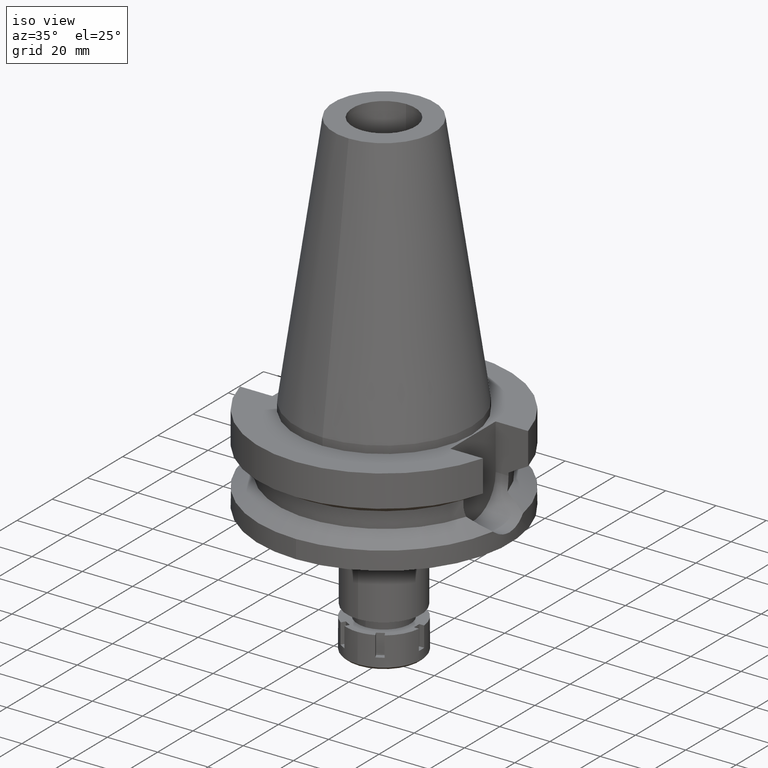
[diagram: clean part render]
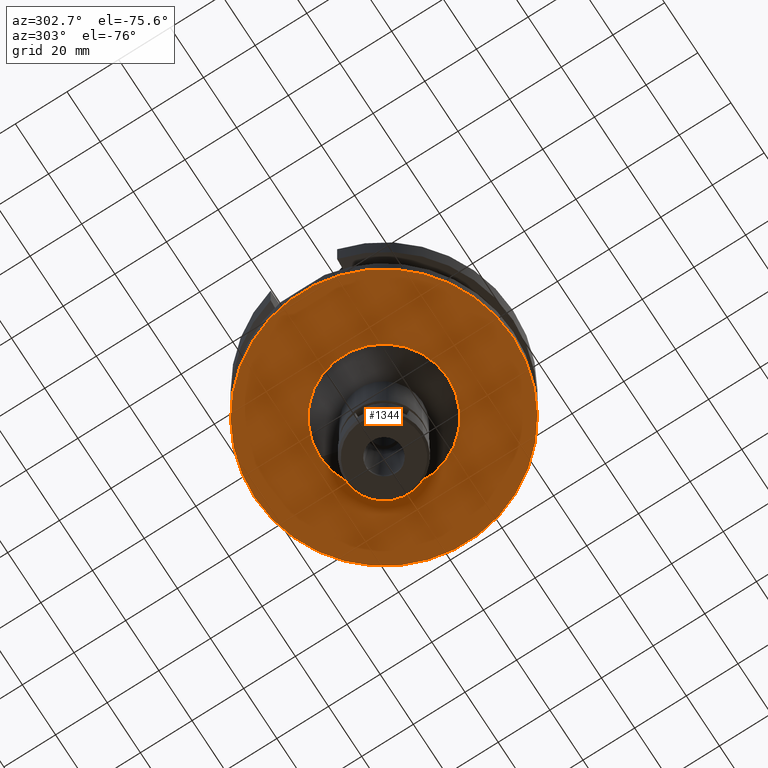
[diagram: tour spotlight — one face highlighted and labeled with its STEP entity id]
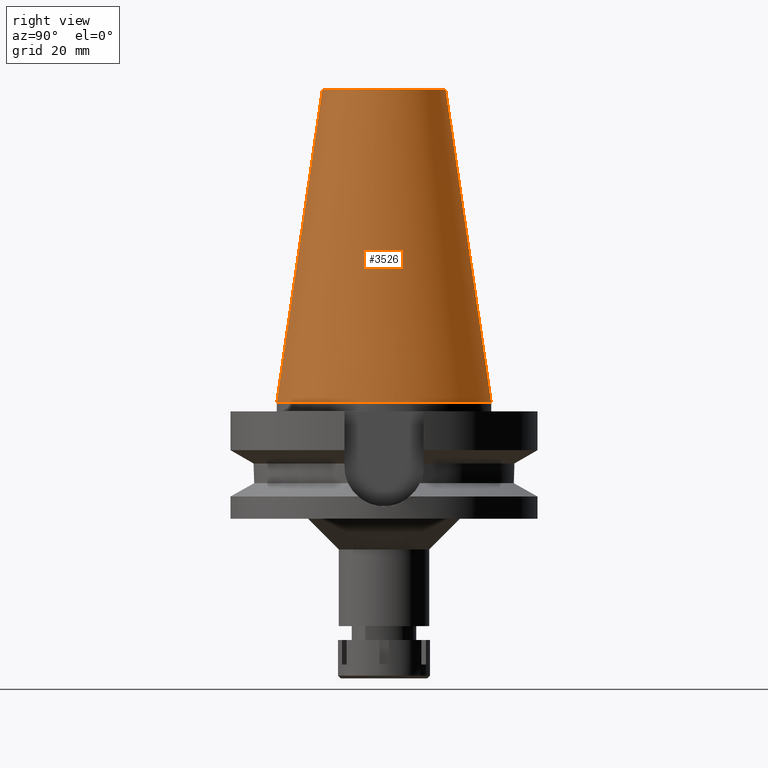
[diagram: tour spotlight — one face highlighted and labeled with its STEP entity id]
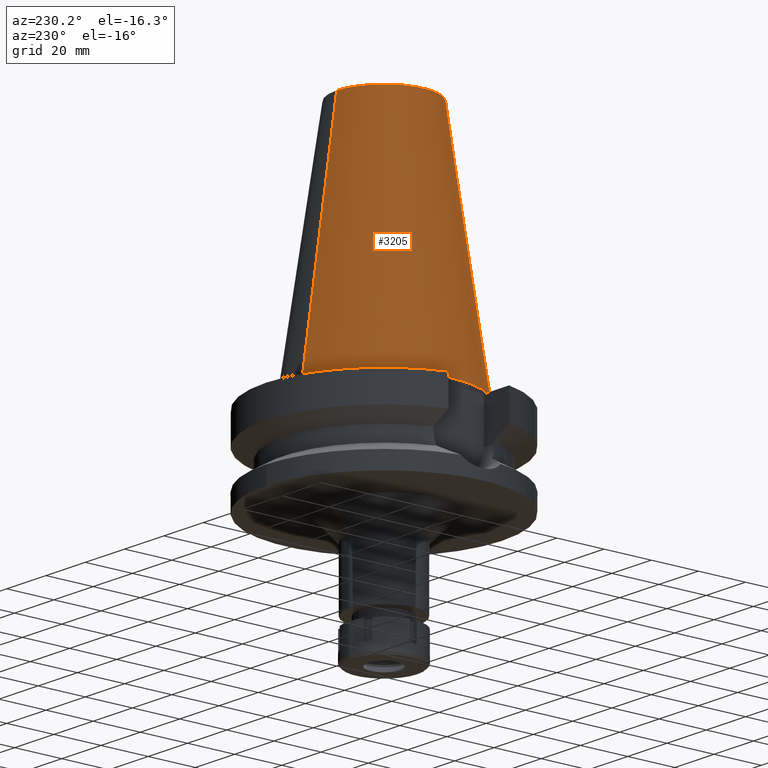
[diagram: tour spotlight — one face highlighted and labeled with its STEP entity id]
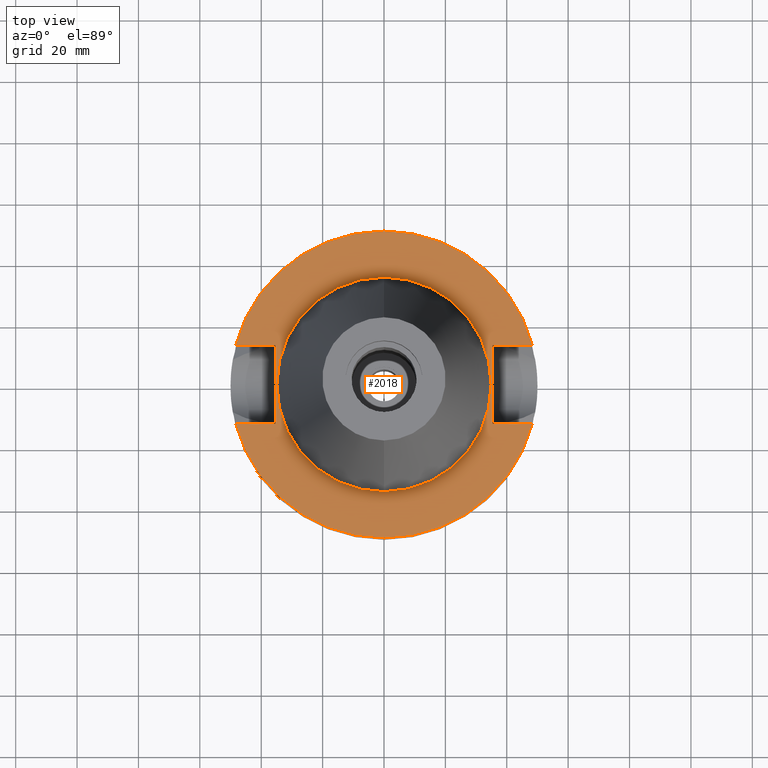
[diagram: tour spotlight — one face highlighted and labeled with its STEP entity id]
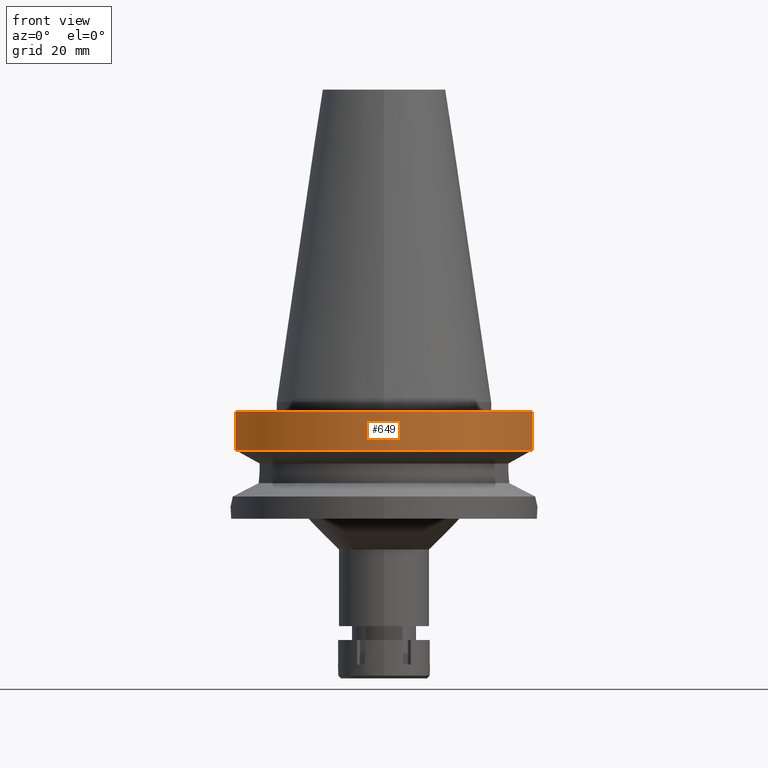
[diagram: tour spotlight — one face highlighted and labeled with its STEP entity id]
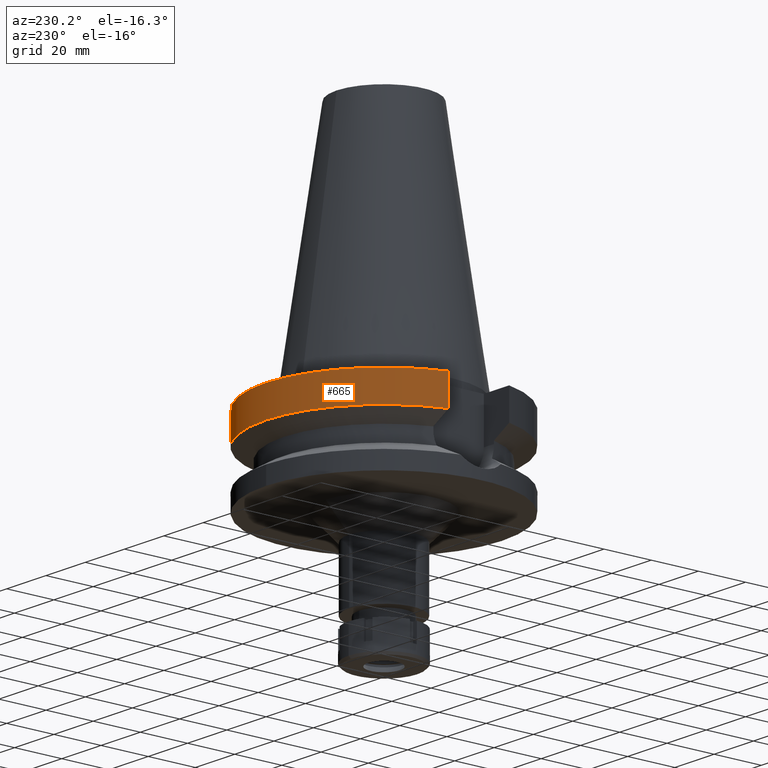
[diagram: tour spotlight — one face highlighted and labeled with its STEP entity id]
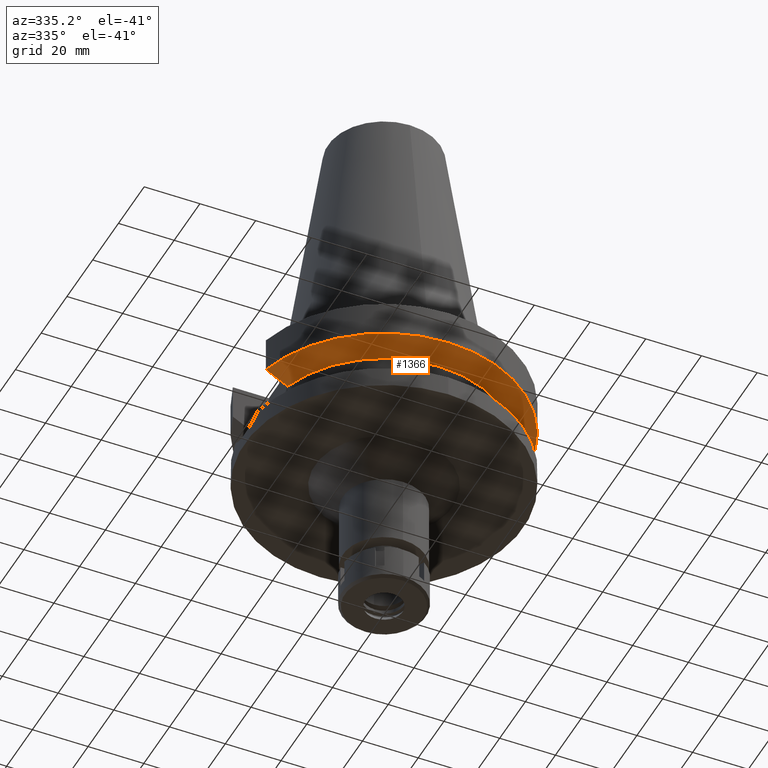
[diagram: tour spotlight — one face highlighted and labeled with its STEP entity id]
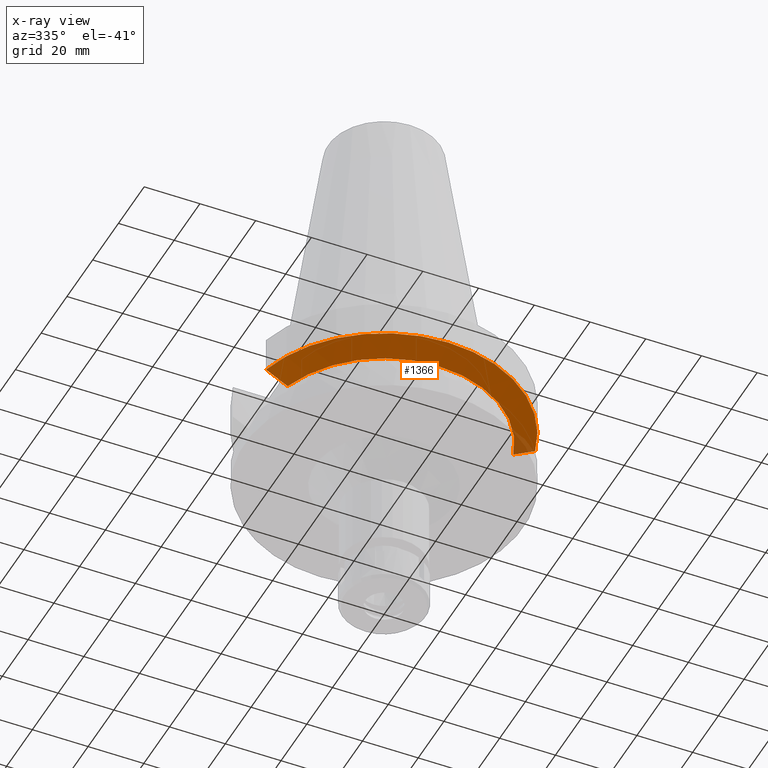
[diagram: x-ray of the same camera — body ghosted, this tour face saturated]
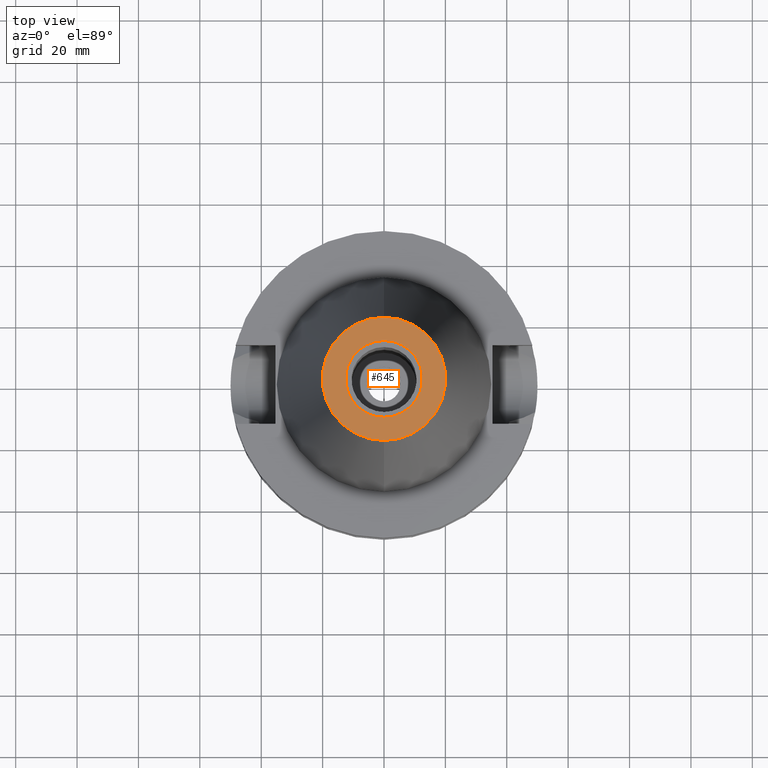
[diagram: tour spotlight — one face highlighted and labeled with its STEP entity id]
A machine part: a face-by-face anatomy tour. The part has 93 B-rep faces; the first image is the clean iso view, then the 8 largest visible faces are spotlighted one at a time (largest first), each with its STEP entity span.

Face 1 — auxiliary view, entity #1344. In plain terms, the highlighted planar face has unit normal (0, 0, -1).
Definition (entity closure, byte-faithful):
#5 = EDGE_LOOP ( 'NONE', ( #776, #1572 ) ) ;
#161 = DIRECTION ( 'NONE',  ( 0.0000000000000000000, 0.0000000000000000000, -1.000000000000000000 ) ) ;
#171 = AXIS2_PLACEMENT_3D ( 'NONE', #1367, #473, #2141 ) ;
#438 = CARTESIAN_POINT ( 'NONE',  ( 0.0000000000000000000, 0.0000000000000000000, -38.00000000000000000 ) ) ;
#473 = DIRECTION ( 'NONE',  ( 0.0000000000000000000, 0.0000000000000000000, 1.000000000000000000 ) ) ;
#568 = AXIS2_PLACEMENT_3D ( 'NONE', #438, #161, #2421 ) ;
#629 = CIRCLE ( 'NONE', #568, 24.75000000000000000 ) ;
#697 = VERTEX_POINT ( 'NONE', #1315 ) ;
#729 = DIRECTION ( 'NONE',  ( 0.0000000000000000000, 0.0000000000000000000, 1.000000000000000000 ) ) ;
#758 = VERTEX_POINT ( 'NONE', #1909 ) ;
#776 = ORIENTED_EDGE ( 'NONE', *, *, #3333, .F. ) ;
#877 = CIRCLE ( 'NONE', #171, 50.00000000000000000 ) ;
#1110 = DIRECTION ( 'NONE',  ( 0.0000000000000000000, 0.0000000000000000000, -1.000000000000000000 ) ) ;
#1150 = AXIS2_PLACEMENT_3D ( 'NONE', #3404, #1110, #2254 ) ;
#1282 = CIRCLE ( 'NONE', #3371, 50.00000000000000000 ) ;
#1315 = CARTESIAN_POINT ( 'NONE',  ( 0.0000000000000000000, 24.75000000000000000, -38.00000000000000000 ) ) ;
#1344 = ADVANCED_FACE ( 'NONE', ( #1964, #2237 ), #2532, .T. ) ;
#1367 = CARTESIAN_POINT ( 'NONE',  ( 0.0000000000000000000, 2.584494604920999480E-14, -38.00000000000000000 ) ) ;
#1572 = ORIENTED_EDGE ( 'NONE', *, *, #3402, .F. ) ;
#1597 = VERTEX_POINT ( 'NONE', #2040 ) ;
#1598 = CARTESIAN_POINT ( 'NONE',  ( 0.0000000000000000000, 0.0000000000000000000, -38.00000000000000000 ) ) ;
#1909 = CARTESIAN_POINT ( 'NONE',  ( 0.0000000000000000000, -50.00000000000000000, -38.00000000000000000 ) ) ;
#1964 = FACE_OUTER_BOUND ( 'NONE', #5, .T. ) ;
#2040 = CARTESIAN_POINT ( 'NONE',  ( 0.0000000000000000000, -24.75000000000000000, -38.00000000000000000 ) ) ;
#2141 = DIRECTION ( 'NONE',  ( 0.0000000000000000000, -1.000000000000000000, 0.0000000000000000000 ) ) ;
#2172 = DIRECTION ( 'NONE',  ( 0.0000000000000000000, 1.000000000000000000, 0.0000000000000000000 ) ) ;
#2221 = AXIS2_PLACEMENT_3D ( 'NONE', #1598, #2741, #2172 ) ;
#2224 = CIRCLE ( 'NONE', #2221, 24.75000000000000000 ) ;
#2237 = FACE_BOUND ( 'NONE', #3459, .T. ) ;
#2254 = DIRECTION ( 'NONE',  ( 0.0000000000000000000, -1.000000000000000000, 0.0000000000000000000 ) ) ;
#2421 = DIRECTION ( 'NONE',  ( 0.0000000000000000000, -1.000000000000000000, 0.0000000000000000000 ) ) ;
#2521 = ORIENTED_EDGE ( 'NONE', *, *, #3183, .F. ) ;
#2532 = PLANE ( 'NONE',  #1150 ) ;
#2726 = CARTESIAN_POINT ( 'NONE',  ( 0.0000000000000000000, 2.584494604920999480E-14, -38.00000000000000000 ) ) ;
#2741 = DIRECTION ( 'NONE',  ( 0.0000000000000000000, 0.0000000000000000000, -1.000000000000000000 ) ) ;
#2905 = VERTEX_POINT ( 'NONE', #2955 ) ;
#2955 = CARTESIAN_POINT ( 'NONE',  ( 0.0000000000000000000, 50.00000000000000000, -38.00000000000000000 ) ) ;
#3002 = DIRECTION ( 'NONE',  ( 0.0000000000000000000, 1.000000000000000000, 0.0000000000000000000 ) ) ;
#3183 = EDGE_CURVE ( 'NONE', #1597, #697, #629, .T. ) ;
#3333 = EDGE_CURVE ( 'NONE', #2905, #758, #1282, .T. ) ;
#3371 = AXIS2_PLACEMENT_3D ( 'NONE', #2726, #729, #3002 ) ;
#3402 = EDGE_CURVE ( 'NONE', #758, #2905, #877, .T. ) ;
#3404 = CARTESIAN_POINT ( 'NONE',  ( 0.0000000000000000000, 0.0000000000000000000, -38.00000000000000000 ) ) ;
#3408 = EDGE_CURVE ( 'NONE', #697, #1597, #2224, .T. ) ;
#3459 = EDGE_LOOP ( 'NONE', ( #3611, #2521 ) ) ;
#3611 = ORIENTED_EDGE ( 'NONE', *, *, #3408, .F. ) ;

Face 2 — right view, entity #3526. In plain terms, the highlighted conical surface has half-angle 8.297 deg.
Definition (entity closure, byte-faithful):
#23 = AXIS2_PLACEMENT_3D ( 'NONE', #1745, #2044, #862 ) ;
#39 = AXIS2_PLACEMENT_3D ( 'NONE', #148, #720, #2110 ) ;
#84 = CARTESIAN_POINT ( 'NONE',  ( 0.0000000000000000000, -34.92499999999999716, 4.547473508865000658E-13 ) ) ;
#108 = CONICAL_SURFACE ( 'NONE', #2599, 27.50221485948000222, 0.1448099680379422438 ) ;
#148 = CARTESIAN_POINT ( 'NONE',  ( 0.0000000000000000000, 1.847992019912999597E-14, 3.979039320256999774E-13 ) ) ;
#197 = LINE ( 'NONE', #1627, #2775 ) ;
#455 = DIRECTION ( 'NONE',  ( 0.0000000000000000000, 0.1443043893538948075, -0.9895333461855641000 ) ) ;
#534 = DIRECTION ( 'NONE',  ( 0.0000000000000000000, -1.000000000000000000, 0.0000000000000000000 ) ) ;
#545 = EDGE_CURVE ( 'NONE', #1318, #1051, #2143, .T. ) ;
#720 = DIRECTION ( 'NONE',  ( 0.0000000000000000000, 0.0000000000000000000, -1.000000000000000000 ) ) ;
#731 = CARTESIAN_POINT ( 'NONE',  ( 0.0000000000000000000, 34.92499999999999716, 4.547473508865000658E-13 ) ) ;
#862 = DIRECTION ( 'NONE',  ( 0.0000000000000000000, 1.000000000000000000, 0.0000000000000000000 ) ) ;
#957 = ORIENTED_EDGE ( 'NONE', *, *, #3348, .F. ) ;
#980 = EDGE_CURVE ( 'NONE', #1518, #1318, #1382, .T. ) ;
#1051 = VERTEX_POINT ( 'NONE', #84 ) ;
#1185 = ORIENTED_EDGE ( 'NONE', *, *, #980, .T. ) ;
#1196 = ORIENTED_EDGE ( 'NONE', *, *, #545, .T. ) ;
#1306 = VERTEX_POINT ( 'NONE', #731 ) ;
#1318 = VERTEX_POINT ( 'NONE', #2585 ) ;
#1382 = CIRCLE ( 'NONE', #23, 20.07942971896000017 ) ;
#1404 = CARTESIAN_POINT ( 'NONE',  ( 0.0000000000000000000, 1.847992019912999597E-14, 50.89999999999999858 ) ) ;
#1518 = VERTEX_POINT ( 'NONE', #3468 ) ;
#1627 = CARTESIAN_POINT ( 'NONE',  ( 0.0000000000000000000, 20.07942971896000017, 101.7999999999999972 ) ) ;
#1641 = EDGE_LOOP ( 'NONE', ( #1185, #1196, #3044, #957 ) ) ;
#1665 = DIRECTION ( 'NONE',  ( 0.0000000000000000000, 0.0000000000000000000, -1.000000000000000000 ) ) ;
#1745 = CARTESIAN_POINT ( 'NONE',  ( 0.0000000000000000000, 1.847992019912999597E-14, 101.7999999999999972 ) ) ;
#2044 = DIRECTION ( 'NONE',  ( 0.0000000000000000000, 0.0000000000000000000, -1.000000000000000000 ) ) ;
#2072 = DIRECTION ( 'NONE',  ( 0.0000000000000000000, -0.1443043893538948075, -0.9895333461855641000 ) ) ;
#2110 = DIRECTION ( 'NONE',  ( 0.0000000000000000000, 1.000000000000000000, 0.0000000000000000000 ) ) ;
#2131 = CARTESIAN_POINT ( 'NONE',  ( 0.0000000000000000000, -20.07942971896000017, 101.7999999999999972 ) ) ;
#2143 = LINE ( 'NONE', #2131, #2756 ) ;
#2585 = CARTESIAN_POINT ( 'NONE',  ( 0.0000000000000000000, -20.07942971896000017, 101.7999999999999972 ) ) ;
#2599 = AXIS2_PLACEMENT_3D ( 'NONE', #1404, #1665, #534 ) ;
#2756 = VECTOR ( 'NONE', #2072, 1000.000000000000114 ) ;
#2775 = VECTOR ( 'NONE', #455, 1000.000000000000114 ) ;
#2966 = EDGE_CURVE ( 'NONE', #1306, #1051, #3427, .T. ) ;
#3044 = ORIENTED_EDGE ( 'NONE', *, *, #2966, .F. ) ;
#3348 = EDGE_CURVE ( 'NONE', #1518, #1306, #197, .T. ) ;
#3403 = FACE_OUTER_BOUND ( 'NONE', #1641, .T. ) ;
#3427 = CIRCLE ( 'NONE', #39, 34.92499999999999716 ) ;
#3468 = CARTESIAN_POINT ( 'NONE',  ( 0.0000000000000000000, 20.07942971896000017, 101.7999999999999972 ) ) ;
#3526 = ADVANCED_FACE ( 'NONE', ( #3403 ), #108, .T. ) ;

Face 3 — auxiliary view, entity #3205. In plain terms, the highlighted conical surface has half-angle 8.297 deg.
Definition (entity closure, byte-faithful):
#84 = CARTESIAN_POINT ( 'NONE',  ( 0.0000000000000000000, -34.92499999999999716, 4.547473508865000658E-13 ) ) ;
#197 = LINE ( 'NONE', #1627, #2775 ) ;
#230 = AXIS2_PLACEMENT_3D ( 'NONE', #589, #3470, #272 ) ;
#272 = DIRECTION ( 'NONE',  ( 0.0000000000000000000, -1.000000000000000000, 0.0000000000000000000 ) ) ;
#273 = CIRCLE ( 'NONE', #1509, 20.07942971896000017 ) ;
#406 = AXIS2_PLACEMENT_3D ( 'NONE', #2396, #1562, #2967 ) ;
#455 = DIRECTION ( 'NONE',  ( 0.0000000000000000000, 0.1443043893538948075, -0.9895333461855641000 ) ) ;
#545 = EDGE_CURVE ( 'NONE', #1318, #1051, #2143, .T. ) ;
#589 = CARTESIAN_POINT ( 'NONE',  ( 0.0000000000000000000, 1.847992019912999597E-14, 3.979039320256999774E-13 ) ) ;
#695 = DIRECTION ( 'NONE',  ( 0.0000000000000000000, 0.0000000000000000000, -1.000000000000000000 ) ) ;
#731 = CARTESIAN_POINT ( 'NONE',  ( 0.0000000000000000000, 34.92499999999999716, 4.547473508865000658E-13 ) ) ;
#1051 = VERTEX_POINT ( 'NONE', #84 ) ;
#1133 = EDGE_CURVE ( 'NONE', #1318, #1518, #273, .T. ) ;
#1226 = CONICAL_SURFACE ( 'NONE', #406, 27.50221485948000222, 0.1448099680379422438 ) ;
#1236 = ORIENTED_EDGE ( 'NONE', *, *, #545, .F. ) ;
#1306 = VERTEX_POINT ( 'NONE', #731 ) ;
#1318 = VERTEX_POINT ( 'NONE', #2585 ) ;
#1324 = EDGE_LOOP ( 'NONE', ( #2961, #1236, #1533, #3081 ) ) ;
#1485 = FACE_OUTER_BOUND ( 'NONE', #1324, .T. ) ;
#1509 = AXIS2_PLACEMENT_3D ( 'NONE', #3249, #695, #2969 ) ;
#1518 = VERTEX_POINT ( 'NONE', #3468 ) ;
#1533 = ORIENTED_EDGE ( 'NONE', *, *, #1133, .T. ) ;
#1562 = DIRECTION ( 'NONE',  ( 0.0000000000000000000, 0.0000000000000000000, -1.000000000000000000 ) ) ;
#1627 = CARTESIAN_POINT ( 'NONE',  ( 0.0000000000000000000, 20.07942971896000017, 101.7999999999999972 ) ) ;
#2072 = DIRECTION ( 'NONE',  ( 0.0000000000000000000, -0.1443043893538948075, -0.9895333461855641000 ) ) ;
#2131 = CARTESIAN_POINT ( 'NONE',  ( 0.0000000000000000000, -20.07942971896000017, 101.7999999999999972 ) ) ;
#2143 = LINE ( 'NONE', #2131, #2756 ) ;
#2396 = CARTESIAN_POINT ( 'NONE',  ( 0.0000000000000000000, 1.847992019912999597E-14, 50.89999999999999858 ) ) ;
#2585 = CARTESIAN_POINT ( 'NONE',  ( 0.0000000000000000000, -20.07942971896000017, 101.7999999999999972 ) ) ;
#2756 = VECTOR ( 'NONE', #2072, 1000.000000000000114 ) ;
#2775 = VECTOR ( 'NONE', #455, 1000.000000000000114 ) ;
#2957 = CIRCLE ( 'NONE', #230, 34.92499999999999716 ) ;
#2961 = ORIENTED_EDGE ( 'NONE', *, *, #3164, .F. ) ;
#2967 = DIRECTION ( 'NONE',  ( 0.0000000000000000000, -1.000000000000000000, 0.0000000000000000000 ) ) ;
#2969 = DIRECTION ( 'NONE',  ( 0.0000000000000000000, -1.000000000000000000, 0.0000000000000000000 ) ) ;
#3081 = ORIENTED_EDGE ( 'NONE', *, *, #3348, .T. ) ;
#3164 = EDGE_CURVE ( 'NONE', #1051, #1306, #2957, .T. ) ;
#3205 = ADVANCED_FACE ( 'NONE', ( #1485 ), #1226, .T. ) ;
#3249 = CARTESIAN_POINT ( 'NONE',  ( 0.0000000000000000000, 1.847992019912999597E-14, 101.7999999999999972 ) ) ;
#3348 = EDGE_CURVE ( 'NONE', #1518, #1306, #197, .T. ) ;
#3468 = CARTESIAN_POINT ( 'NONE',  ( 0.0000000000000000000, 20.07942971896000017, 101.7999999999999972 ) ) ;
#3470 = DIRECTION ( 'NONE',  ( 0.0000000000000000000, 0.0000000000000000000, -1.000000000000000000 ) ) ;

Face 4 — top view, entity #2018. In plain terms, the highlighted planar face has unit normal (0, 0, -1).
Definition (entity closure, byte-faithful):
#102 = EDGE_CURVE ( 'NONE', #2245, #3397, #2788, .T. ) ;
#103 = LINE ( 'NONE', #422, #2417 ) ;
#110 = EDGE_CURVE ( 'NONE', #3397, #3560, #2968, .T. ) ;
#135 = ORIENTED_EDGE ( 'NONE', *, *, #110, .F. ) ;
#226 = CIRCLE ( 'NONE', #3072, 34.92499999999999716 ) ;
#249 = CARTESIAN_POINT ( 'NONE',  ( -35.39999999999999858, -12.84999999999999964, -3.000000000000000000 ) ) ;
#254 = DIRECTION ( 'NONE',  ( 0.0000000000000000000, 0.0000000000000000000, 1.000000000000000000 ) ) ;
#366 = LINE ( 'NONE', #3529, #743 ) ;
#422 = CARTESIAN_POINT ( 'NONE',  ( 35.39999999999999858, -12.84999999999999964, -3.000000000000000000 ) ) ;
#448 = ORIENTED_EDGE ( 'NONE', *, *, #2944, .F. ) ;
#472 = CARTESIAN_POINT ( 'NONE',  ( 35.39999999999999858, 12.84999999999999964, -3.000000000000000000 ) ) ;
#494 = CARTESIAN_POINT ( 'NONE',  ( 35.39999999999999858, -12.84999999999999964, -3.000000000000000000 ) ) ;
#553 = CARTESIAN_POINT ( 'NONE',  ( 0.0000000000000000000, 2.584494604920999480E-14, -3.000000000000000000 ) ) ;
#556 = CARTESIAN_POINT ( 'NONE',  ( -35.39999999999999858, -12.84999999999999964, -3.000000000000000000 ) ) ;
#577 = ORIENTED_EDGE ( 'NONE', *, *, #1508, .F. ) ;
#655 = CARTESIAN_POINT ( 'NONE',  ( -48.32057015392000210, -12.84999999999999964, -3.000000000000000000 ) ) ;
#690 = DIRECTION ( 'NONE',  ( -1.000000000000000000, 0.0000000000000000000, 0.0000000000000000000 ) ) ;
#702 = CARTESIAN_POINT ( 'NONE',  ( 0.0000000000000000000, 1.187907395172999884E-14, -3.000000000000000000 ) ) ;
#710 = CARTESIAN_POINT ( 'NONE',  ( 0.0000000000000000000, 2.584494604920999480E-14, -3.000000000000000000 ) ) ;
#743 = VECTOR ( 'NONE', #970, 1000.000000000000000 ) ;
#766 = CARTESIAN_POINT ( 'NONE',  ( 35.39999999999999858, 12.84999999999999964, -3.000000000000000000 ) ) ;
#961 = FACE_BOUND ( 'NONE', #2802, .T. ) ;
#968 = DIRECTION ( 'NONE',  ( 0.0000000000000000000, 0.0000000000000000000, -1.000000000000000000 ) ) ;
#970 = DIRECTION ( 'NONE',  ( 0.0000000000000000000, -1.000000000000000000, 0.0000000000000000000 ) ) ;
#975 = PLANE ( 'NONE',  #2165 ) ;
#1040 = DIRECTION ( 'NONE',  ( 1.000000000000000000, 0.0000000000000000000, 0.0000000000000000000 ) ) ;
#1120 = EDGE_CURVE ( 'NONE', #1741, #3683, #366, .T. ) ;
#1127 = DIRECTION ( 'NONE',  ( 0.0000000000000000000, 1.000000000000000000, 0.0000000000000000000 ) ) ;
#1171 = DIRECTION ( 'NONE',  ( -1.000000000000000000, 0.0000000000000000000, 0.0000000000000000000 ) ) ;
#1265 = DIRECTION ( 'NONE',  ( 0.0000000000000000000, 0.0000000000000000000, -1.000000000000000000 ) ) ;
#1358 = EDGE_CURVE ( 'NONE', #2245, #2416, #3105, .T. ) ;
#1457 = CARTESIAN_POINT ( 'NONE',  ( 48.32057015392000210, -12.84999999999999964, -3.000000000000000000 ) ) ;
#1458 = CIRCLE ( 'NONE', #1692, 34.92499999999999716 ) ;
#1489 = VERTEX_POINT ( 'NONE', #2098 ) ;
#1508 = EDGE_CURVE ( 'NONE', #2650, #2416, #1922, .T. ) ;
#1514 = FACE_OUTER_BOUND ( 'NONE', #3190, .T. ) ;
#1634 = AXIS2_PLACEMENT_3D ( 'NONE', #553, #2534, #2810 ) ;
#1681 = EDGE_CURVE ( 'NONE', #1741, #2011, #2452, .T. ) ;
#1692 = AXIS2_PLACEMENT_3D ( 'NONE', #3535, #254, #1930 ) ;
#1741 = VERTEX_POINT ( 'NONE', #472 ) ;
#1775 = VERTEX_POINT ( 'NONE', #2197 ) ;
#1822 = DIRECTION ( 'NONE',  ( 1.000000000000000000, 0.0000000000000000000, 0.0000000000000000000 ) ) ;
#1833 = ORIENTED_EDGE ( 'NONE', *, *, #3247, .F. ) ;
#1922 = CIRCLE ( 'NONE', #3415, 50.00000000000000000 ) ;
#1930 = DIRECTION ( 'NONE',  ( 0.0000000000000000000, 1.000000000000000000, 0.0000000000000000000 ) ) ;
#2006 = ORIENTED_EDGE ( 'NONE', *, *, #1120, .F. ) ;
#2011 = VERTEX_POINT ( 'NONE', #2732 ) ;
#2018 = ADVANCED_FACE ( 'NONE', ( #1514, #961 ), #975, .F. ) ;
#2098 = CARTESIAN_POINT ( 'NONE',  ( 0.0000000000000000000, 34.92499999999999716, -3.000000000000000000 ) ) ;
#2165 = AXIS2_PLACEMENT_3D ( 'NONE', #702, #1265, #2404 ) ;
#2186 = CARTESIAN_POINT ( 'NONE',  ( -35.39999999999999858, 12.84999999999999964, -3.000000000000000000 ) ) ;
#2197 = CARTESIAN_POINT ( 'NONE',  ( 0.0000000000000000000, -34.92499999999999716, -3.000000000000000000 ) ) ;
#2245 = VERTEX_POINT ( 'NONE', #556 ) ;
#2404 = DIRECTION ( 'NONE',  ( 0.0000000000000000000, -1.000000000000000000, 0.0000000000000000000 ) ) ;
#2416 = VERTEX_POINT ( 'NONE', #655 ) ;
#2417 = VECTOR ( 'NONE', #1822, 1000.000000000000000 ) ;
#2423 = VECTOR ( 'NONE', #1127, 1000.000000000000000 ) ;
#2452 = LINE ( 'NONE', #766, #3661 ) ;
#2534 = DIRECTION ( 'NONE',  ( 0.0000000000000000000, 0.0000000000000000000, -1.000000000000000000 ) ) ;
#2548 = CARTESIAN_POINT ( 'NONE',  ( -35.39999999999999858, -12.84999999999999964, -3.000000000000000000 ) ) ;
#2562 = CARTESIAN_POINT ( 'NONE',  ( -48.32057015392000210, 12.84999999999999964, -3.000000000000000000 ) ) ;
#2650 = VERTEX_POINT ( 'NONE', #1457 ) ;
#2732 = CARTESIAN_POINT ( 'NONE',  ( 48.32057015392000210, 12.84999999999999964, -3.000000000000000000 ) ) ;
#2788 = LINE ( 'NONE', #249, #2423 ) ;
#2802 = EDGE_LOOP ( 'NONE', ( #448, #2949 ) ) ;
#2810 = DIRECTION ( 'NONE',  ( 0.0000000000000000000, 1.000000000000000000, 0.0000000000000000000 ) ) ;
#2848 = DIRECTION ( 'NONE',  ( 0.0000000000000000000, -1.000000000000000000, 0.0000000000000000000 ) ) ;
#2882 = ORIENTED_EDGE ( 'NONE', *, *, #102, .F. ) ;
#2939 = DIRECTION ( 'NONE',  ( 0.0000000000000000000, -1.000000000000000000, 0.0000000000000000000 ) ) ;
#2944 = EDGE_CURVE ( 'NONE', #1489, #1775, #1458, .T. ) ;
#2949 = ORIENTED_EDGE ( 'NONE', *, *, #3073, .F. ) ;
#2964 = VECTOR ( 'NONE', #690, 1000.000000000000000 ) ;
#2968 = LINE ( 'NONE', #3245, #2964 ) ;
#3072 = AXIS2_PLACEMENT_3D ( 'NONE', #3390, #3127, #2848 ) ;
#3073 = EDGE_CURVE ( 'NONE', #1775, #1489, #226, .T. ) ;
#3083 = ORIENTED_EDGE ( 'NONE', *, *, #1358, .T. ) ;
#3105 = LINE ( 'NONE', #2548, #3658 ) ;
#3118 = EDGE_CURVE ( 'NONE', #3560, #2011, #3432, .T. ) ;
#3127 = DIRECTION ( 'NONE',  ( 0.0000000000000000000, 0.0000000000000000000, 1.000000000000000000 ) ) ;
#3190 = EDGE_LOOP ( 'NONE', ( #3083, #577, #1833, #2006, #3331, #3673, #135, #2882 ) ) ;
#3245 = CARTESIAN_POINT ( 'NONE',  ( -35.39999999999999858, 12.84999999999999964, -3.000000000000000000 ) ) ;
#3247 = EDGE_CURVE ( 'NONE', #3683, #2650, #103, .T. ) ;
#3331 = ORIENTED_EDGE ( 'NONE', *, *, #1681, .T. ) ;
#3390 = CARTESIAN_POINT ( 'NONE',  ( 0.0000000000000000000, 2.584494604920999480E-14, -3.000000000000000000 ) ) ;
#3397 = VERTEX_POINT ( 'NONE', #2186 ) ;
#3415 = AXIS2_PLACEMENT_3D ( 'NONE', #710, #968, #2939 ) ;
#3432 = CIRCLE ( 'NONE', #1634, 50.00000000000000000 ) ;
#3529 = CARTESIAN_POINT ( 'NONE',  ( 35.39999999999999858, 12.84999999999999964, -3.000000000000000000 ) ) ;
#3535 = CARTESIAN_POINT ( 'NONE',  ( 0.0000000000000000000, 2.584494604920999480E-14, -3.000000000000000000 ) ) ;
#3560 = VERTEX_POINT ( 'NONE', #2562 ) ;
#3658 = VECTOR ( 'NONE', #1171, 1000.000000000000000 ) ;
#3661 = VECTOR ( 'NONE', #1040, 1000.000000000000000 ) ;
#3673 = ORIENTED_EDGE ( 'NONE', *, *, #3118, .F. ) ;
#3683 = VERTEX_POINT ( 'NONE', #494 ) ;

Face 5 — front view, entity #649. In plain terms, the highlighted cylindrical surface (partial cylindrical patch) has radius 50 mm, axis along (0, 0, -1).
Definition (entity closure, byte-faithful):
#395 = CIRCLE ( 'NONE', #1270, 50.00000000000000000 ) ;
#484 = DIRECTION ( 'NONE',  ( 0.0000000000000000000, 0.0000000000000000000, 1.000000000000000000 ) ) ;
#588 = DIRECTION ( 'NONE',  ( -8.047621082620600144E-08, -3.026189770691850034E-07, -0.9999999999999510392 ) ) ;
#649 = ADVANCED_FACE ( 'NONE', ( #3626 ), #3589, .T. ) ;
#655 = CARTESIAN_POINT ( 'NONE',  ( -48.32057015392000210, -12.84999999999999964, -3.000000000000000000 ) ) ;
#709 = VERTEX_POINT ( 'NONE', #3605 ) ;
#710 = CARTESIAN_POINT ( 'NONE',  ( 0.0000000000000000000, 2.584494604920999480E-14, -3.000000000000000000 ) ) ;
#968 = DIRECTION ( 'NONE',  ( 0.0000000000000000000, 0.0000000000000000000, -1.000000000000000000 ) ) ;
#1034 = AXIS2_PLACEMENT_3D ( 'NONE', #1094, #1654, #1076 ) ;
#1076 = DIRECTION ( 'NONE',  ( 0.0000000000000000000, -1.000000000000000000, 0.0000000000000000000 ) ) ;
#1094 = CARTESIAN_POINT ( 'NONE',  ( 0.0000000000000000000, 2.584494604920999480E-14, 111.0400000000000063 ) ) ;
#1270 = AXIS2_PLACEMENT_3D ( 'NONE', #3301, #484, #2184 ) ;
#1310 = ORIENTED_EDGE ( 'NONE', *, *, #1635, .F. ) ;
#1417 = EDGE_CURVE ( 'NONE', #2650, #709, #3451, .T. ) ;
#1457 = CARTESIAN_POINT ( 'NONE',  ( 48.32057015392000210, -12.84999999999999964, -3.000000000000000000 ) ) ;
#1500 = DIRECTION ( 'NONE',  ( -8.058817555715599136E-08, 3.030400043934850333E-07, 0.9999999999999509281 ) ) ;
#1508 = EDGE_CURVE ( 'NONE', #2650, #2416, #1922, .T. ) ;
#1635 = EDGE_CURVE ( 'NONE', #3208, #2416, #2923, .T. ) ;
#1647 = EDGE_CURVE ( 'NONE', #3208, #709, #395, .T. ) ;
#1654 = DIRECTION ( 'NONE',  ( 0.0000000000000000000, 0.0000000000000000000, -1.000000000000000000 ) ) ;
#1922 = CIRCLE ( 'NONE', #3415, 50.00000000000000000 ) ;
#2184 = DIRECTION ( 'NONE',  ( 0.0000000000000000000, -1.000000000000000000, 0.0000000000000000000 ) ) ;
#2337 = VECTOR ( 'NONE', #1500, 999.9999999999998863 ) ;
#2416 = VERTEX_POINT ( 'NONE', #655 ) ;
#2641 = VECTOR ( 'NONE', #588, 1000.000000000000000 ) ;
#2650 = VERTEX_POINT ( 'NONE', #1457 ) ;
#2846 = CARTESIAN_POINT ( 'NONE',  ( 48.32057015392000210, -12.84999999999999964, -3.000000000000000000 ) ) ;
#2898 = ORIENTED_EDGE ( 'NONE', *, *, #1647, .T. ) ;
#2923 = LINE ( 'NONE', #3527, #2337 ) ;
#2939 = DIRECTION ( 'NONE',  ( 0.0000000000000000000, -1.000000000000000000, 0.0000000000000000000 ) ) ;
#2983 = CARTESIAN_POINT ( 'NONE',  ( -48.32056913345999760, -12.85000383729000006, -15.66265786160999873 ) ) ;
#3034 = EDGE_LOOP ( 'NONE', ( #1310, #2898, #3339, #3520 ) ) ;
#3208 = VERTEX_POINT ( 'NONE', #2983 ) ;
#3301 = CARTESIAN_POINT ( 'NONE',  ( 0.0000000000000000000, 1.006319759053999930E-14, -15.66269223573000069 ) ) ;
#3339 = ORIENTED_EDGE ( 'NONE', *, *, #1417, .F. ) ;
#3415 = AXIS2_PLACEMENT_3D ( 'NONE', #710, #968, #2939 ) ;
#3451 = LINE ( 'NONE', #2846, #2641 ) ;
#3520 = ORIENTED_EDGE ( 'NONE', *, *, #1508, .T. ) ;
#3527 = CARTESIAN_POINT ( 'NONE',  ( -48.32056913345999760, -12.85000383729000006, -15.66265786160999873 ) ) ;
#3589 = CYLINDRICAL_SURFACE ( 'NONE', #1034, 50.00000000000000000 ) ;
#3605 = CARTESIAN_POINT ( 'NONE',  ( 48.32057015392000210, -12.84999999999999964, -15.66269223573000069 ) ) ;
#3626 = FACE_OUTER_BOUND ( 'NONE', #3034, .T. ) ;

Face 6 — auxiliary view, entity #665. In plain terms, the highlighted cylindrical surface (partial cylindrical patch) has radius 50 mm, axis along (0, 0, -1).
Definition (entity closure, byte-faithful):
#104 = EDGE_CURVE ( 'NONE', #246, #300, #2901, .T. ) ;
#220 = DIRECTION ( 'NONE',  ( 0.0000000000000000000, -1.000000000000000000, 0.0000000000000000000 ) ) ;
#246 = VERTEX_POINT ( 'NONE', #1434 ) ;
#300 = VERTEX_POINT ( 'NONE', #1180 ) ;
#418 = AXIS2_PLACEMENT_3D ( 'NONE', #653, #1527, #2644 ) ;
#430 = DIRECTION ( 'NONE',  ( 8.058951442265600025E-08, -3.030450408508849993E-07, 0.9999999999999509281 ) ) ;
#444 = LINE ( 'NONE', #521, #3491 ) ;
#445 = ORIENTED_EDGE ( 'NONE', *, *, #104, .T. ) ;
#485 = ORIENTED_EDGE ( 'NONE', *, *, #3118, .T. ) ;
#521 = CARTESIAN_POINT ( 'NONE',  ( 48.32056913344000293, 12.85000383735999918, -15.66265786103999957 ) ) ;
#553 = CARTESIAN_POINT ( 'NONE',  ( 0.0000000000000000000, 2.584494604920999480E-14, -3.000000000000000000 ) ) ;
#653 = CARTESIAN_POINT ( 'NONE',  ( 0.0000000000000000000, 1.006319759053999930E-14, -15.66269223573000069 ) ) ;
#665 = ADVANCED_FACE ( 'NONE', ( #3079 ), #2512, .T. ) ;
#737 = ORIENTED_EDGE ( 'NONE', *, *, #1462, .F. ) ;
#798 = VECTOR ( 'NONE', #1722, 1000.000000000000000 ) ;
#882 = CARTESIAN_POINT ( 'NONE',  ( -48.32057015392000210, 12.84999999999999964, -3.000000000000000000 ) ) ;
#1028 = CARTESIAN_POINT ( 'NONE',  ( 0.0000000000000000000, 2.584494604920999480E-14, 111.0400000000000063 ) ) ;
#1180 = CARTESIAN_POINT ( 'NONE',  ( -48.32056913488000305, 12.85000383195999873, -15.66265790940000358 ) ) ;
#1210 = ORIENTED_EDGE ( 'NONE', *, *, #2829, .F. ) ;
#1434 = CARTESIAN_POINT ( 'NONE',  ( 48.32056913344000293, 12.85000383735999918, -15.66265786103999957 ) ) ;
#1462 = EDGE_CURVE ( 'NONE', #3560, #300, #2881, .T. ) ;
#1505 = AXIS2_PLACEMENT_3D ( 'NONE', #1028, #3659, #220 ) ;
#1527 = DIRECTION ( 'NONE',  ( 0.0000000000000000000, 0.0000000000000000000, 1.000000000000000000 ) ) ;
#1578 = EDGE_LOOP ( 'NONE', ( #737, #485, #1210, #445 ) ) ;
#1634 = AXIS2_PLACEMENT_3D ( 'NONE', #553, #2534, #2810 ) ;
#1722 = DIRECTION ( 'NONE',  ( 8.047613619539610381E-08, 3.026186988870849873E-07, -0.9999999999999510392 ) ) ;
#2011 = VERTEX_POINT ( 'NONE', #2732 ) ;
#2512 = CYLINDRICAL_SURFACE ( 'NONE', #1505, 50.00000000000000000 ) ;
#2534 = DIRECTION ( 'NONE',  ( 0.0000000000000000000, 0.0000000000000000000, -1.000000000000000000 ) ) ;
#2562 = CARTESIAN_POINT ( 'NONE',  ( -48.32057015392000210, 12.84999999999999964, -3.000000000000000000 ) ) ;
#2644 = DIRECTION ( 'NONE',  ( 0.0000000000000000000, 1.000000000000000000, 0.0000000000000000000 ) ) ;
#2732 = CARTESIAN_POINT ( 'NONE',  ( 48.32057015392000210, 12.84999999999999964, -3.000000000000000000 ) ) ;
#2810 = DIRECTION ( 'NONE',  ( 0.0000000000000000000, 1.000000000000000000, 0.0000000000000000000 ) ) ;
#2829 = EDGE_CURVE ( 'NONE', #246, #2011, #444, .T. ) ;
#2881 = LINE ( 'NONE', #882, #798 ) ;
#2901 = CIRCLE ( 'NONE', #418, 50.00000000000000000 ) ;
#3079 = FACE_OUTER_BOUND ( 'NONE', #1578, .T. ) ;
#3118 = EDGE_CURVE ( 'NONE', #3560, #2011, #3432, .T. ) ;
#3432 = CIRCLE ( 'NONE', #1634, 50.00000000000000000 ) ;
#3491 = VECTOR ( 'NONE', #430, 999.9999999999998863 ) ;
#3560 = VERTEX_POINT ( 'NONE', #2562 ) ;
#3659 = DIRECTION ( 'NONE',  ( 0.0000000000000000000, 0.0000000000000000000, -1.000000000000000000 ) ) ;

Face 7 — auxiliary view, entity #1366. An x-ray twin of the same camera follows (body ghosted, this face saturated) — the face is partly hidden behind the body. In plain terms, the highlighted conical surface has half-angle 60 deg.
Definition (entity closure, byte-faithful):
#1 = CARTESIAN_POINT ( 'NONE',  ( 0.0000000000000000000, 1.006319759053999930E-14, -17.82775574519000017 ) ) ;
#7 = ORIENTED_EDGE ( 'NONE', *, *, #3467, .T. ) ;
#360 = EDGE_CURVE ( 'NONE', #3200, #781, #1501, .T. ) ;
#395 = CIRCLE ( 'NONE', #1270, 50.00000000000000000 ) ;
#484 = DIRECTION ( 'NONE',  ( 0.0000000000000000000, 0.0000000000000000000, 1.000000000000000000 ) ) ;
#522 = CARTESIAN_POINT ( 'NONE',  ( -40.51083299956000161, -12.84999648566000019, -19.99284622474999651 ) ) ;
#572 = FACE_OUTER_BOUND ( 'NONE', #2498, .T. ) ;
#709 = VERTEX_POINT ( 'NONE', #3605 ) ;
#739 = EDGE_CURVE ( 'NONE', #3208, #781, #973, .T. ) ;
#781 = VERTEX_POINT ( 'NONE', #2551 ) ;
#973 = B_SPLINE_CURVE_WITH_KNOTS ( 'NONE', 3,
 ( #3040, #1061, #1636, #522 ),
 .UNSPECIFIED., .F., .F.,
 ( 4, 4 ),
 ( 0.0000000000000000000, 1.000000000000000000 ),
 .UNSPECIFIED. ) ;
#1061 = CARTESIAN_POINT ( 'NONE',  ( -45.51179789322389269, -12.85000766995661081, -17.22986769098791626 ) ) ;
#1211 = CONICAL_SURFACE ( 'NONE', #1682, 46.25000000000000000, 1.047197551196400456 ) ;
#1223 = ORIENTED_EDGE ( 'NONE', *, *, #360, .F. ) ;
#1230 = CARTESIAN_POINT ( 'NONE',  ( 40.51083188481999997, -12.84999999999999964, -19.99281925464999787 ) ) ;
#1270 = AXIS2_PLACEMENT_3D ( 'NONE', #3301, #484, #2184 ) ;
#1366 = ADVANCED_FACE ( 'NONE', ( #572 ), #1211, .T. ) ;
#1501 = CIRCLE ( 'NONE', #3537, 42.50000000000002132 ) ;
#1636 = CARTESIAN_POINT ( 'NONE',  ( -42.90862372501882049, -12.84999296417323222, -18.67324847598090187 ) ) ;
#1647 = EDGE_CURVE ( 'NONE', #3208, #709, #395, .T. ) ;
#1682 = AXIS2_PLACEMENT_3D ( 'NONE', #1, #1948, #2827 ) ;
#1704 = CARTESIAN_POINT ( 'NONE',  ( 48.32057015392000210, -12.84999999999999964, -15.66269223573000069 ) ) ;
#1853 = B_SPLINE_CURVE_WITH_KNOTS ( 'NONE', 3,
 ( #2253, #2845, #1963, #1704 ),
 .UNSPECIFIED., .F., .F.,
 ( 4, 4 ),
 ( 0.0000000000000000000, 1.000000000000000000 ),
 .UNSPECIFIED. ) ;
#1948 = DIRECTION ( 'NONE',  ( 0.0000000000000000000, 0.0000000000000000000, 1.000000000000000000 ) ) ;
#1963 = CARTESIAN_POINT ( 'NONE',  ( 45.51179336378530138, -12.85000765831703973, -17.22987019037373457 ) ) ;
#2184 = DIRECTION ( 'NONE',  ( 0.0000000000000000000, -1.000000000000000000, 0.0000000000000000000 ) ) ;
#2253 = CARTESIAN_POINT ( 'NONE',  ( 40.51083188481999997, -12.84999999999999964, -19.99281925464999787 ) ) ;
#2311 = CARTESIAN_POINT ( 'NONE',  ( 0.0000000000000000000, 1.006319759053999930E-14, -19.99281925464999787 ) ) ;
#2389 = ORIENTED_EDGE ( 'NONE', *, *, #1647, .F. ) ;
#2498 = EDGE_LOOP ( 'NONE', ( #3096, #1223, #7, #2389 ) ) ;
#2551 = CARTESIAN_POINT ( 'NONE',  ( -40.51083299956000161, -12.84999648566000019, -19.99284622474999651 ) ) ;
#2614 = DIRECTION ( 'NONE',  ( 0.0000000000000000000, 0.0000000000000000000, -1.000000000000000000 ) ) ;
#2827 = DIRECTION ( 'NONE',  ( 0.0000000000000000000, 1.000000000000000000, 0.0000000000000000000 ) ) ;
#2845 = CARTESIAN_POINT ( 'NONE',  ( 42.90862732443886074, -12.84999294001302061, -18.67324646772318886 ) ) ;
#2983 = CARTESIAN_POINT ( 'NONE',  ( -48.32056913345999760, -12.85000383729000006, -15.66265786160999873 ) ) ;
#3040 = CARTESIAN_POINT ( 'NONE',  ( -48.32056913345999760, -12.85000383729000006, -15.66265786160999873 ) ) ;
#3096 = ORIENTED_EDGE ( 'NONE', *, *, #739, .T. ) ;
#3133 = DIRECTION ( 'NONE',  ( 0.9531960443486575674, -0.3023529411764863672, 0.0000000000000000000 ) ) ;
#3200 = VERTEX_POINT ( 'NONE', #1230 ) ;
#3208 = VERTEX_POINT ( 'NONE', #2983 ) ;
#3301 = CARTESIAN_POINT ( 'NONE',  ( 0.0000000000000000000, 1.006319759053999930E-14, -15.66269223573000069 ) ) ;
#3467 = EDGE_CURVE ( 'NONE', #3200, #709, #1853, .T. ) ;
#3537 = AXIS2_PLACEMENT_3D ( 'NONE', #2311, #2614, #3133 ) ;
#3605 = CARTESIAN_POINT ( 'NONE',  ( 48.32057015392000210, -12.84999999999999964, -15.66269223573000069 ) ) ;

Face 8 — top view, entity #645. In plain terms, the highlighted planar face has unit normal (0, 0, -1).
Definition (entity closure, byte-faithful):
#23 = AXIS2_PLACEMENT_3D ( 'NONE', #1745, #2044, #862 ) ;
#182 = CARTESIAN_POINT ( 'NONE',  ( 0.0000000000000000000, 2.584494604920999480E-14, 101.7999999999999972 ) ) ;
#273 = CIRCLE ( 'NONE', #1509, 20.07942971896000017 ) ;
#340 = VERTEX_POINT ( 'NONE', #925 ) ;
#412 = DIRECTION ( 'NONE',  ( 0.0000000000000000000, 0.0000000000000000000, -1.000000000000000000 ) ) ;
#428 = FACE_OUTER_BOUND ( 'NONE', #1342, .T. ) ;
#645 = ADVANCED_FACE ( 'NONE', ( #428, #2089 ), #677, .F. ) ;
#677 = PLANE ( 'NONE',  #1739 ) ;
#695 = DIRECTION ( 'NONE',  ( 0.0000000000000000000, 0.0000000000000000000, -1.000000000000000000 ) ) ;
#862 = DIRECTION ( 'NONE',  ( 0.0000000000000000000, 1.000000000000000000, 0.0000000000000000000 ) ) ;
#925 = CARTESIAN_POINT ( 'NONE',  ( 0.0000000000000000000, 12.50000000000000000, 101.7999999999999972 ) ) ;
#980 = EDGE_CURVE ( 'NONE', #1518, #1318, #1382, .T. ) ;
#1023 = DIRECTION ( 'NONE',  ( 0.0000000000000000000, -1.000000000000000000, 0.0000000000000000000 ) ) ;
#1133 = EDGE_CURVE ( 'NONE', #1318, #1518, #273, .T. ) ;
#1136 = DIRECTION ( 'NONE',  ( 0.0000000000000000000, 1.000000000000000000, 0.0000000000000000000 ) ) ;
#1318 = VERTEX_POINT ( 'NONE', #2585 ) ;
#1342 = EDGE_LOOP ( 'NONE', ( #1841, #1565 ) ) ;
#1350 = DIRECTION ( 'NONE',  ( 0.0000000000000000000, 0.0000000000000000000, 1.000000000000000000 ) ) ;
#1382 = CIRCLE ( 'NONE', #23, 20.07942971896000017 ) ;
#1509 = AXIS2_PLACEMENT_3D ( 'NONE', #3249, #695, #2969 ) ;
#1518 = VERTEX_POINT ( 'NONE', #3468 ) ;
#1565 = ORIENTED_EDGE ( 'NONE', *, *, #1133, .F. ) ;
#1626 = CIRCLE ( 'NONE', #3175, 12.50000000000000000 ) ;
#1708 = EDGE_CURVE ( 'NONE', #2910, #340, #1626, .T. ) ;
#1739 = AXIS2_PLACEMENT_3D ( 'NONE', #1806, #412, #2676 ) ;
#1745 = CARTESIAN_POINT ( 'NONE',  ( 0.0000000000000000000, 1.847992019912999597E-14, 101.7999999999999972 ) ) ;
#1806 = CARTESIAN_POINT ( 'NONE',  ( 0.0000000000000000000, 2.471337240678999545E-14, 101.7999999999999972 ) ) ;
#1841 = ORIENTED_EDGE ( 'NONE', *, *, #980, .F. ) ;
#1905 = EDGE_CURVE ( 'NONE', #340, #2910, #2765, .T. ) ;
#2044 = DIRECTION ( 'NONE',  ( 0.0000000000000000000, 0.0000000000000000000, -1.000000000000000000 ) ) ;
#2089 = FACE_BOUND ( 'NONE', #2373, .T. ) ;
#2373 = EDGE_LOOP ( 'NONE', ( #2763, #3629 ) ) ;
#2585 = CARTESIAN_POINT ( 'NONE',  ( 0.0000000000000000000, -20.07942971896000017, 101.7999999999999972 ) ) ;
#2676 = DIRECTION ( 'NONE',  ( 0.0000000000000000000, -1.000000000000000000, 0.0000000000000000000 ) ) ;
#2763 = ORIENTED_EDGE ( 'NONE', *, *, #1905, .F. ) ;
#2765 = CIRCLE ( 'NONE', #3005, 12.50000000000000000 ) ;
#2871 = DIRECTION ( 'NONE',  ( 0.0000000000000000000, 0.0000000000000000000, 1.000000000000000000 ) ) ;
#2894 = CARTESIAN_POINT ( 'NONE',  ( 0.0000000000000000000, 2.584494604920999480E-14, 101.7999999999999972 ) ) ;
#2910 = VERTEX_POINT ( 'NONE', #3260 ) ;
#2969 = DIRECTION ( 'NONE',  ( 0.0000000000000000000, -1.000000000000000000, 0.0000000000000000000 ) ) ;
#3005 = AXIS2_PLACEMENT_3D ( 'NONE', #2894, #2871, #1136 ) ;
#3175 = AXIS2_PLACEMENT_3D ( 'NONE', #182, #1350, #1023 ) ;
#3249 = CARTESIAN_POINT ( 'NONE',  ( 0.0000000000000000000, 1.847992019912999597E-14, 101.7999999999999972 ) ) ;
#3260 = CARTESIAN_POINT ( 'NONE',  ( 0.0000000000000000000, -12.50000000000000000, 101.7999999999999972 ) ) ;
#3468 = CARTESIAN_POINT ( 'NONE',  ( 0.0000000000000000000, 20.07942971896000017, 101.7999999999999972 ) ) ;
#3629 = ORIENTED_EDGE ( 'NONE', *, *, #1708, .F. ) ;